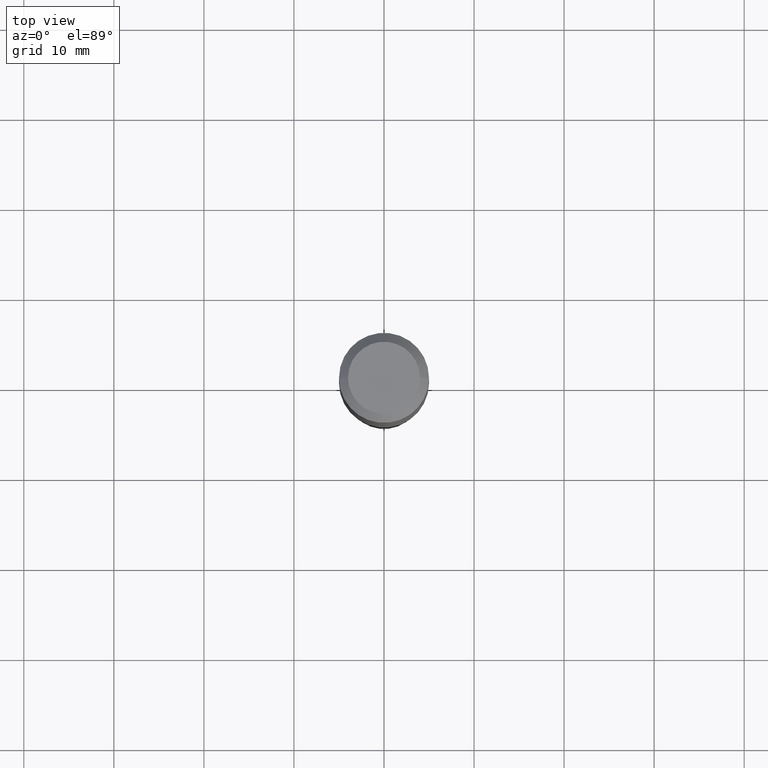
[diagram: clean part render]
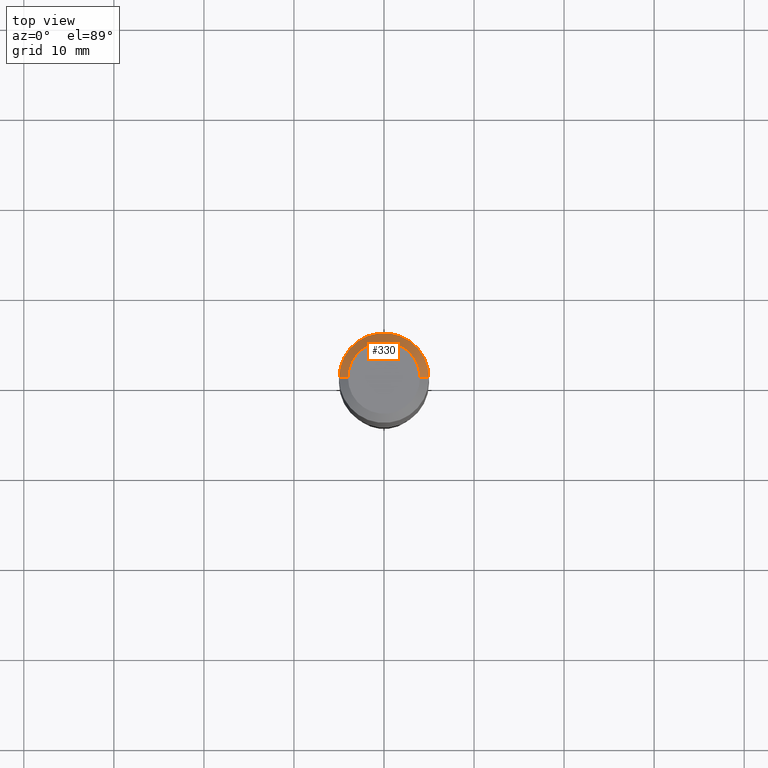
[diagram: same view with one face highlighted and labeled with its STEP entity id]
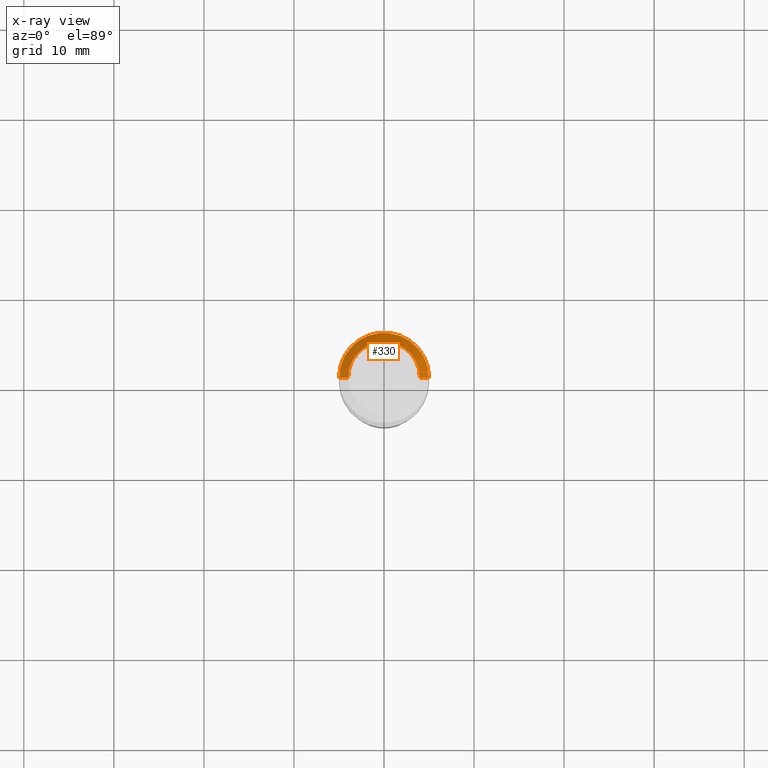
[diagram: x-ray of the same camera — body ghosted, the highlighted face saturated]
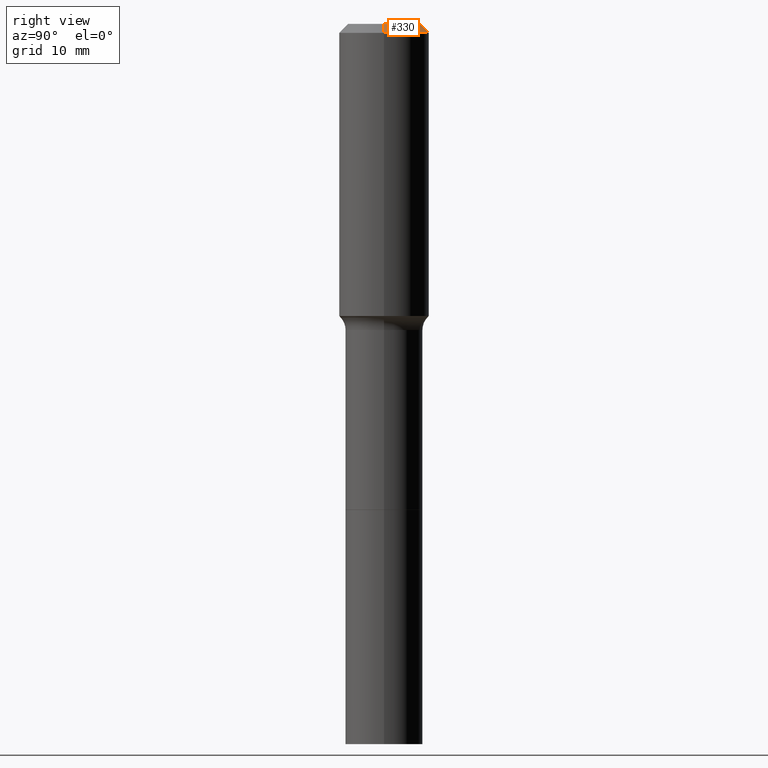
[diagram: same view with one face highlighted and labeled with its STEP entity id]
A machine part, top view. The second image highlights one B-rep face of the part: STEP entity #330.
The next image is the same camera in x-ray: the body ghosted, the highlighted face saturated — about 0% of this face is hidden behind the body in this view.
A second angle (right view) of the same face is appended — the face is thin or edge-on in the first view.
In plain terms, the highlighted conical surface has half-angle 45 deg.
Its self-contained STEP definition (entity closure, byte-faithful):
#3 = DIRECTION ( 'NONE',  ( -2.445468806185136597E-29, 3.491481338843145583E-15, 1.000000000000000000 ) ) ;
#4 = VECTOR ( 'NONE', #65, 39.37007874015748143 ) ;
#20 = VERTEX_POINT ( 'NONE', #117 ) ;
#22 = LINE ( 'NONE', #454, #282 ) ;
#29 = DIRECTION ( 'NONE',  ( 2.445468806185136597E-29, -3.491481338843145583E-15, -1.000000000000000000 ) ) ;
#56 = EDGE_CURVE ( 'NONE', #171, #20, #160, .T. ) ;
#58 = CARTESIAN_POINT ( 'NONE',  ( 0.1968500000000000527, -1.512055823412797583E-15, -0.03937000000000030059 ) ) ;
#65 = DIRECTION ( 'NONE',  ( 0.7071067811865452413, -7.319954787623248157E-15, -0.7071067811865497932 ) ) ;
#96 = AXIS2_PLACEMENT_3D ( 'NONE', #273, #433, #428 ) ;
#113 = ORIENTED_EDGE ( 'NONE', *, *, #515, .F. ) ;
#115 = ORIENTED_EDGE ( 'NONE', *, *, #289, .T. ) ;
#117 = CARTESIAN_POINT ( 'NONE',  ( -0.1574800000000000089, 1.168406772637159815E-15, 3.855188123707939751E-18 ) ) ;
#133 = EDGE_LOOP ( 'NONE', ( #291, #115, #279, #113 ) ) ;
#154 = CARTESIAN_POINT ( 'NONE',  ( 9.627810689950955906E-31, -1.374596203102556794E-16, -0.03937000000000030059 ) ) ;
#160 = CIRCLE ( 'NONE', #233, 0.1574800000000000089 ) ;
#159 = DIRECTION ( 'NONE',  ( 1.000000000000000000, -6.982962677686265922E-15, 4.876223630392693006E-29 ) ) ;
#171 = VERTEX_POINT ( 'NONE', #411 ) ;
#183 = DIRECTION ( 'NONE',  ( -1.000000000000000000, 6.982962677686266711E-15, 0.000000000000000000 ) ) ;
#219 = VERTEX_POINT ( 'NONE', #58 ) ;
#233 = AXIS2_PLACEMENT_3D ( 'NONE', #359, #3, #159 ) ;
#258 = DIRECTION ( 'NONE',  ( -0.7071067811865452413, 2.468850131082233000E-15, -0.7071067811865497932 ) ) ;
#273 = CARTESIAN_POINT ( 'NONE',  ( 9.627810689950955906E-31, -1.374596203102556794E-16, -0.03937000000000030059 ) ) ;
#279 = ORIENTED_EDGE ( 'NONE', *, *, #448, .T. ) ;
#282 = VECTOR ( 'NONE', #258, 39.37007874015748143 ) ;
#289 = EDGE_CURVE ( 'NONE', #171, #219, #414, .T. ) ;
#291 = ORIENTED_EDGE ( 'NONE', *, *, #56, .F. ) ;
#298 = CARTESIAN_POINT ( 'NONE',  ( 0.1968500000000000527, -1.487948651171581996E-15, -0.03937000000000030059 ) ) ;
#311 = CARTESIAN_POINT ( 'NONE',  ( -0.1968500000000000527, -9.002859121073322847E-16, -0.03937000000000030059 ) ) ;
#330 = ADVANCED_FACE ( 'NONE', ( #511 ), #347, .T. ) ;
#338 = VERTEX_POINT ( 'NONE', #311 ) ;
#347 = CONICAL_SURFACE ( 'NONE', #509, 0.1968500000000000527, 0.7853981633974450594 ) ;
#359 = CARTESIAN_POINT ( 'NONE',  ( -9.427742298522567634E-47, 1.346031739168368355E-32, 3.855188123715870730E-18 ) ) ;
#391 = CIRCLE ( 'NONE', #96, 0.1968500000000000527 ) ;
#411 = CARTESIAN_POINT ( 'NONE',  ( 0.1574800000000000089, -1.284169937930321386E-15, 3.855188123724205385E-18 ) ) ;
#414 = LINE ( 'NONE', #298, #4 ) ;
#428 = DIRECTION ( 'NONE',  ( 1.000000000000000000, -6.982962677686266711E-15, 0.000000000000000000 ) ) ;
#433 = DIRECTION ( 'NONE',  ( -2.445468806185136597E-29, 3.491481338843145583E-15, 1.000000000000000000 ) ) ;
#448 = EDGE_CURVE ( 'NONE', #219, #338, #391, .T. ) ;
#454 = CARTESIAN_POINT ( 'NONE',  ( -0.1968500000000000527, 1.237136582792286422E-15, -0.03937000000000030059 ) ) ;
#509 = AXIS2_PLACEMENT_3D ( 'NONE', #154, #29, #183 ) ;
#511 = FACE_OUTER_BOUND ( 'NONE', #133, .T. ) ;
#515 = EDGE_CURVE ( 'NONE', #20, #338, #22, .T. ) ;